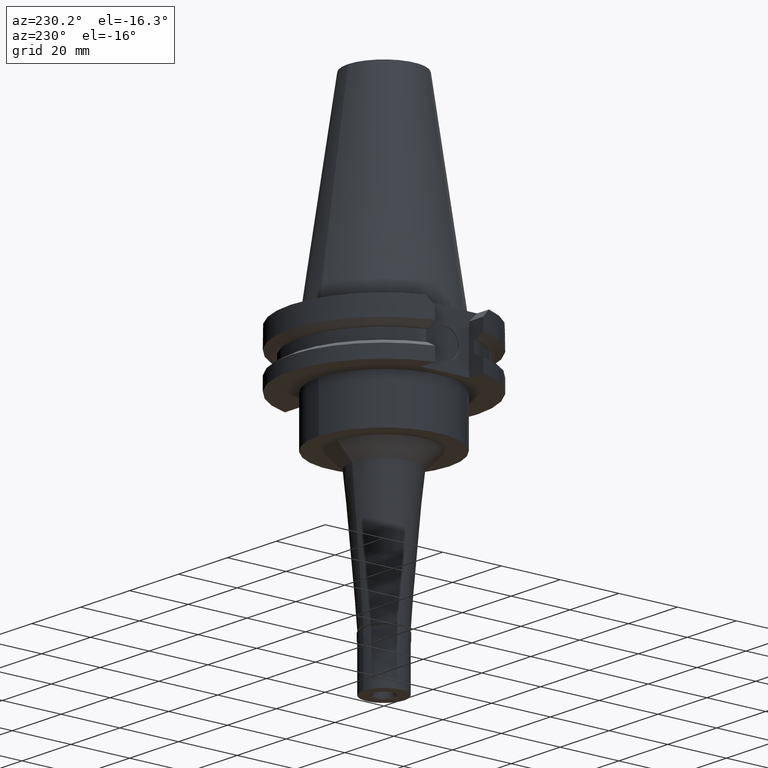
[diagram: clean part render]
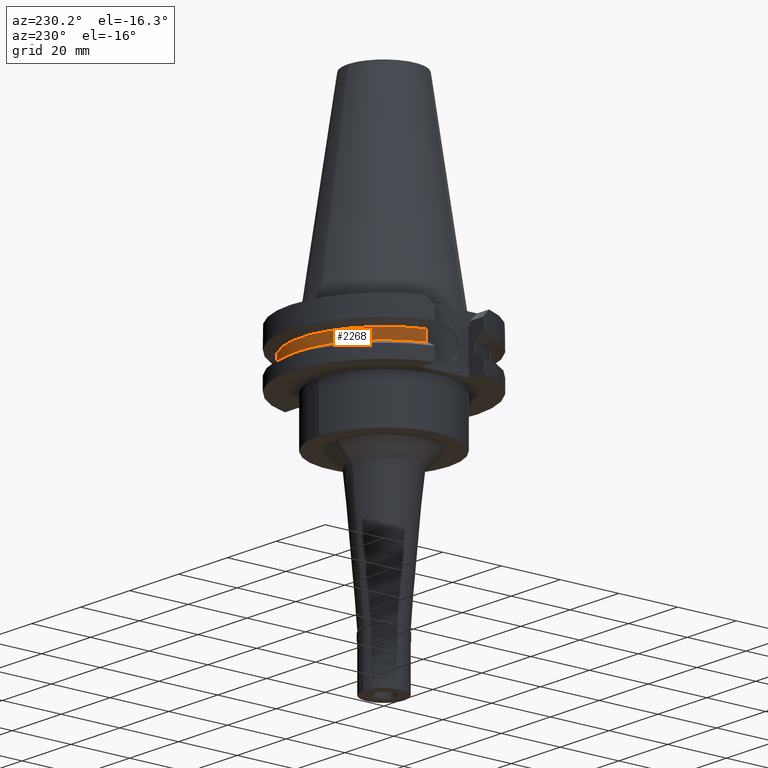
[diagram: same view with one face highlighted and labeled with its STEP entity id]
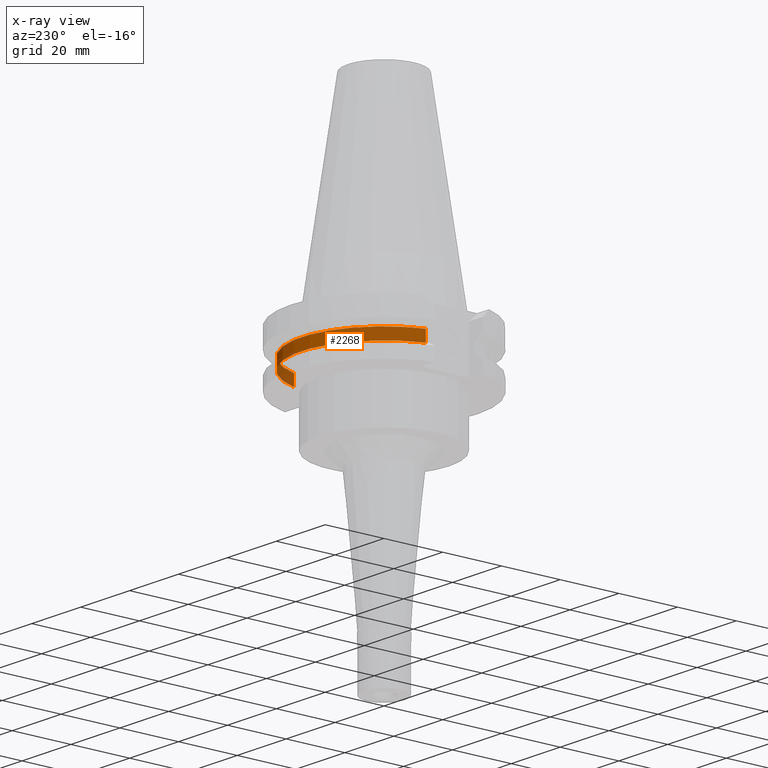
[diagram: x-ray of the same camera — body ghosted, the highlighted face saturated]
A machine part, auxiliary view. The second image highlights one B-rep face of the part: STEP entity #2268.
The next image is the same camera in x-ray: the body ghosted, the highlighted face saturated — about 9% of this face is hidden behind the body in this view.
In plain terms, the highlighted cylindrical surface (partial cylindrical patch) has radius 28.18 mm, axis along (0, 0, -1).
Its self-contained STEP definition (entity closure, byte-faithful):
#51 = CIRCLE ( 'NONE', #2999, 28.17999999999999972 ) ;
#305 = DIRECTION ( 'NONE',  ( 0.0000000000000000000, 0.0000000000000000000, -1.000000000000000000 ) ) ;
#315 = ORIENTED_EDGE ( 'NONE', *, *, #2436, .F. ) ;
#441 = CARTESIAN_POINT ( 'NONE',  ( -26.96361066326000255, 8.189999999999999503, -9.207499999999999574 ) ) ;
#817 = CIRCLE ( 'NONE', #2614, 28.17999999999999616 ) ;
#959 = CARTESIAN_POINT ( 'NONE',  ( -26.96361066326000255, 8.189999999999999503, -13.04749999999999943 ) ) ;
#972 = ORIENTED_EDGE ( 'NONE', *, *, #2662, .T. ) ;
#994 = CARTESIAN_POINT ( 'NONE',  ( 26.96361066326000255, 8.189999999999999503, -13.04749999999999943 ) ) ;
#1026 = AXIS2_PLACEMENT_3D ( 'NONE', #1859, #2325, #2806 ) ;
#1249 = VERTEX_POINT ( 'NONE', #959 ) ;
#1293 = DIRECTION ( 'NONE',  ( -0.9568350128907829877, 0.2906316536550950236, 0.0000000000000000000 ) ) ;
#1343 = DIRECTION ( 'NONE',  ( 0.0000000000000000000, 1.000000000000000000, 0.0000000000000000000 ) ) ;
#1435 = VERTEX_POINT ( 'NONE', #441 ) ;
#1554 = ORIENTED_EDGE ( 'NONE', *, *, #3093, .F. ) ;
#1611 = CYLINDRICAL_SURFACE ( 'NONE', #1026, 28.17999999999999972 ) ;
#1654 = LINE ( 'NONE', #2640, #1784 ) ;
#1678 = ORIENTED_EDGE ( 'NONE', *, *, #2760, .T. ) ;
#1784 = VECTOR ( 'NONE', #2964, 1000.000000000000000 ) ;
#1859 = CARTESIAN_POINT ( 'NONE',  ( 0.0000000000000000000, 2.162022075384999775E-14, 76.54250000000000398 ) ) ;
#1873 = LINE ( 'NONE', #2117, #2308 ) ;
#1925 = DIRECTION ( 'NONE',  ( 0.0000000000000000000, 0.0000000000000000000, -1.000000000000000000 ) ) ;
#2077 = CARTESIAN_POINT ( 'NONE',  ( 0.0000000000000000000, 2.162022075384999775E-14, -13.04749999999999943 ) ) ;
#2117 = CARTESIAN_POINT ( 'NONE',  ( -26.96361066326000255, 8.189999999999999503, -9.207499999999999574 ) ) ;
#2252 = CARTESIAN_POINT ( 'NONE',  ( 0.0000000000000000000, 2.162022075384999775E-14, -9.207499999999999574 ) ) ;
#2268 = ADVANCED_FACE ( 'NONE', ( #2306 ), #1611, .T. ) ;
#2306 = FACE_OUTER_BOUND ( 'NONE', #3156, .T. ) ;
#2308 = VECTOR ( 'NONE', #1925, 1000.000000000000000 ) ;
#2325 = DIRECTION ( 'NONE',  ( 0.0000000000000000000, 0.0000000000000000000, -1.000000000000000000 ) ) ;
#2436 = EDGE_CURVE ( 'NONE', #1435, #1249, #1873, .T. ) ;
#2564 = VERTEX_POINT ( 'NONE', #2952 ) ;
#2614 = AXIS2_PLACEMENT_3D ( 'NONE', #2252, #305, #1293 ) ;
#2640 = CARTESIAN_POINT ( 'NONE',  ( 26.96361066326000255, 8.189999999999999503, -13.04749999999999943 ) ) ;
#2662 = EDGE_CURVE ( 'NONE', #1435, #2564, #817, .T. ) ;
#2684 = VERTEX_POINT ( 'NONE', #994 ) ;
#2760 = EDGE_CURVE ( 'NONE', #2684, #1249, #51, .T. ) ;
#2806 = DIRECTION ( 'NONE',  ( 0.0000000000000000000, -1.000000000000000000, 0.0000000000000000000 ) ) ;
#2952 = CARTESIAN_POINT ( 'NONE',  ( 26.96361066326000255, 8.189999999999999503, -9.207499999999999574 ) ) ;
#2964 = DIRECTION ( 'NONE',  ( 0.0000000000000000000, 0.0000000000000000000, 1.000000000000000000 ) ) ;
#2999 = AXIS2_PLACEMENT_3D ( 'NONE', #2077, #3088, #1343 ) ;
#3088 = DIRECTION ( 'NONE',  ( 0.0000000000000000000, 0.0000000000000000000, 1.000000000000000000 ) ) ;
#3093 = EDGE_CURVE ( 'NONE', #2684, #2564, #1654, .T. ) ;
#3156 = EDGE_LOOP ( 'NONE', ( #1554, #1678, #315, #972 ) ) ;